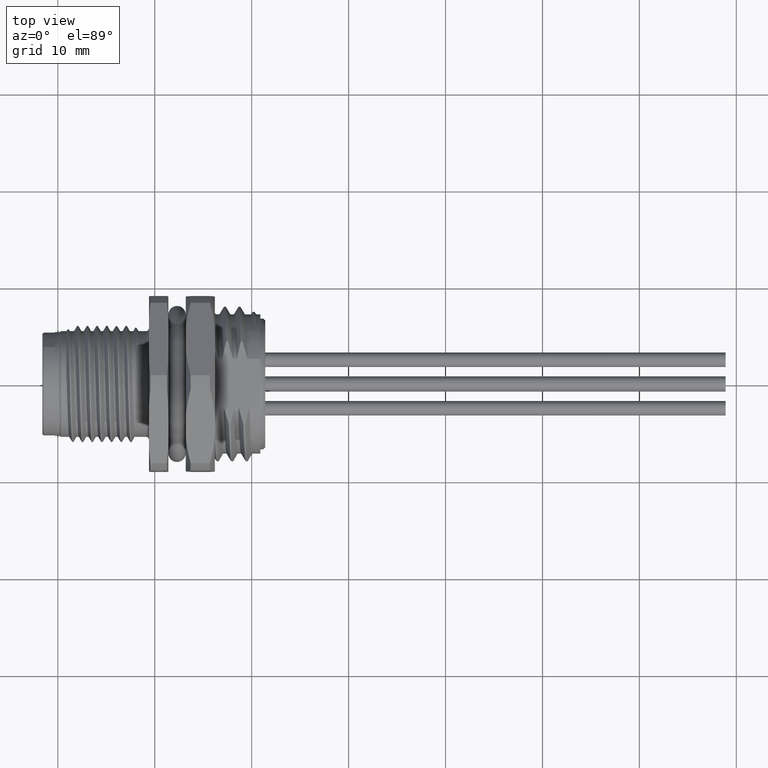
[diagram: clean part render]
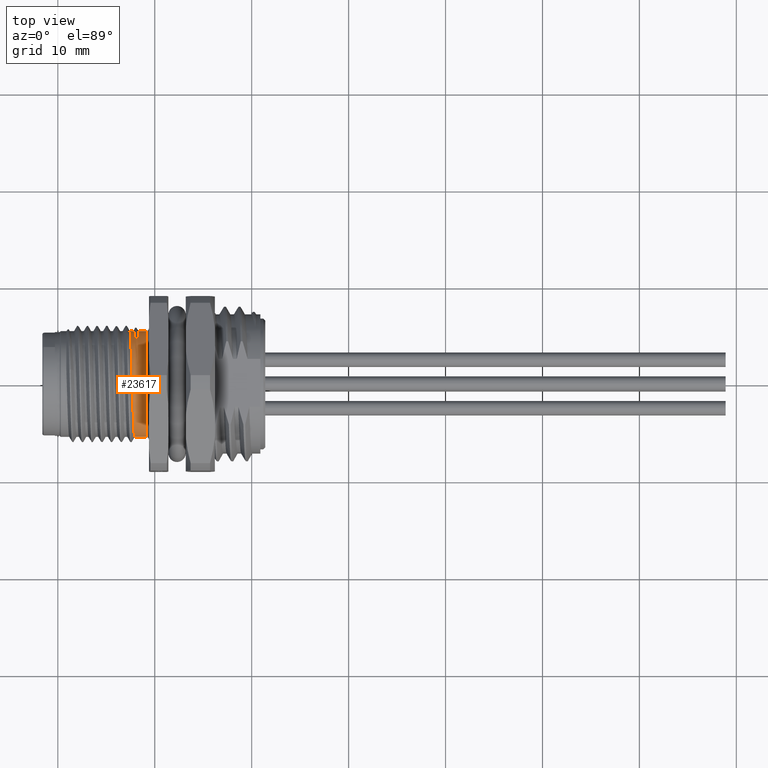
[diagram: same view with one face highlighted and labeled with its STEP entity id]
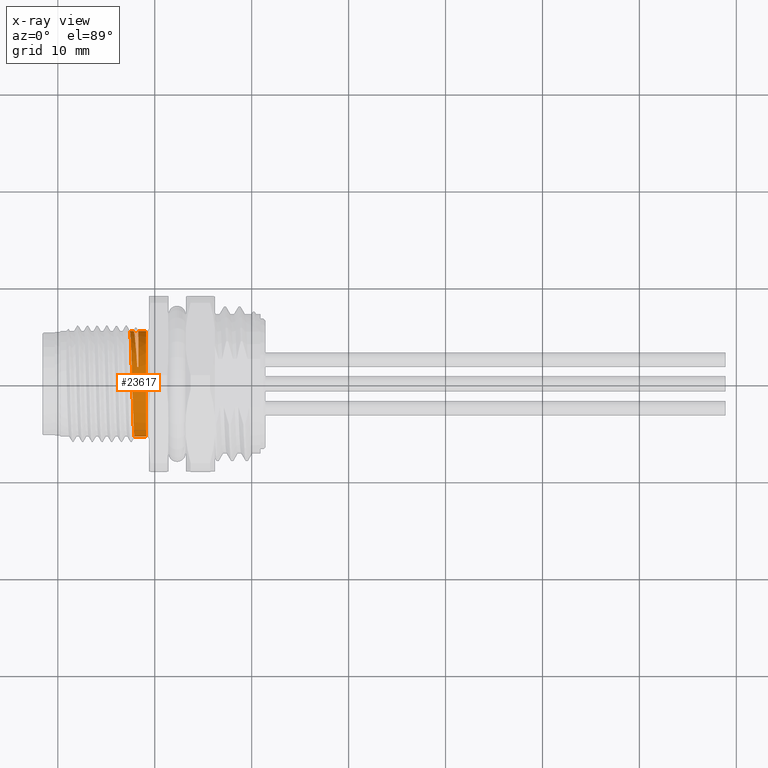
[diagram: x-ray of the same camera — body ghosted, the highlighted face saturated]
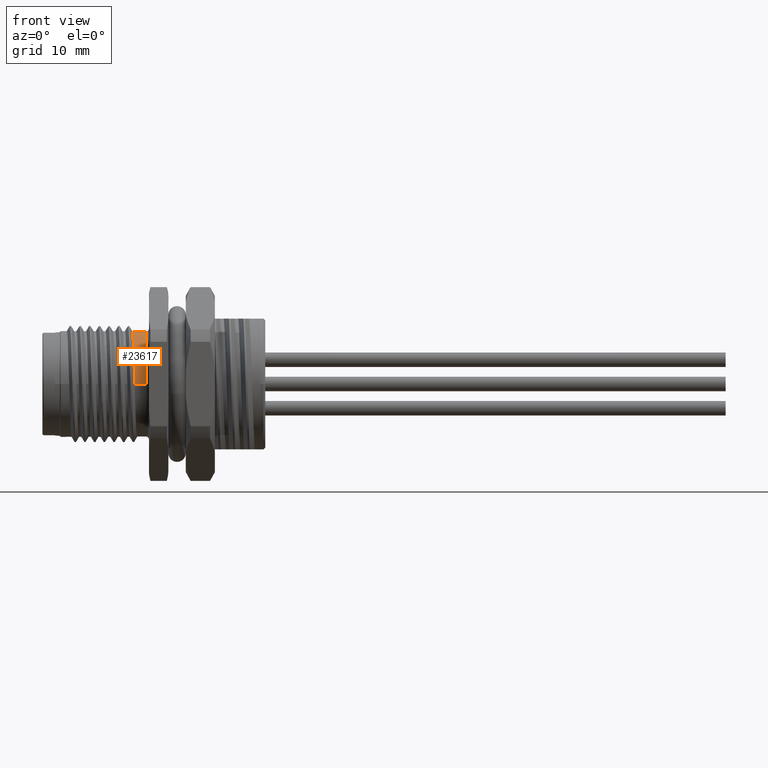
[diagram: same view with one face highlighted and labeled with its STEP entity id]
A machine part, top view. The second image highlights one B-rep face of the part: STEP entity #23617.
The next image is the same camera in x-ray: the body ghosted, the highlighted face saturated — about 0% of this face is hidden behind the body in this view.
A second angle (front view) of the same face is appended — the face is thin or edge-on in the first view.
In plain terms, the highlighted cylindrical surface (partial cylindrical patch) has radius 5.4585 mm, axis along (1, 0, 0).
Its self-contained STEP definition (entity closure, byte-faithful):
#7182=CARTESIAN_POINT('',(9.1E0,0.E0,0.E0));
#7183=DIRECTION('',(-1.E0,0.E0,0.E0));
#7184=DIRECTION('',(0.E0,-1.E0,0.E0));
#7185=AXIS2_PLACEMENT_3D('',#7182,#7183,#7184);
#7187=CARTESIAN_POINT('',(9.1E0,0.E0,0.E0));
#7188=DIRECTION('',(-1.E0,0.E0,0.E0));
#7189=DIRECTION('',(0.E0,-9.999984010933E-1,1.788242374370E-3));
#7190=AXIS2_PLACEMENT_3D('',#7187,#7188,#7189);
#7207=DIRECTION('',(-9.999999998442E-1,1.763795657482E-5,-6.393055044972E-7));
#7208=VECTOR('',#7207,1.174897422755E0);
#7209=CARTESIAN_POINT('',(9.1E0,-5.4585E0,0.E0));
#7210=LINE('',#7209,#7208);
#7211=CARTESIAN_POINT('',(7.925102577428E0,-5.458479277210E0,
-7.511183884526E-7));
#7212=CARTESIAN_POINT('',(7.914670303423E0,-5.458479277210E0,
3.565071054038E-1));
#7213=CARTESIAN_POINT('',(7.893956685434E0,-5.388311715190E0,1.070360497287E0));
#7214=CARTESIAN_POINT('',(7.862651445275E0,-5.076201195601E0,2.101779332017E0));
#7215=CARTESIAN_POINT('',(7.831248904882E0,-4.564848608542E0,3.055819770886E0));
#7216=CARTESIAN_POINT('',(7.800429030378E0,-3.891406341018E0,3.877094333022E0));
#7217=CARTESIAN_POINT('',(7.769050057715E0,-3.057157264757E0,4.565043234737E0));
#7218=CARTESIAN_POINT('',(7.737710143136E0,-2.104749873264E0,5.074590487869E0));
#7219=CARTESIAN_POINT('',(7.706405319902E0,-1.072485930141E0,5.388199195871E0));
#7220=CARTESIAN_POINT('',(7.675068575422E0,2.291444817495E-3,5.493714760883E0));
#7221=CARTESIAN_POINT('',(7.643875755686E0,1.072076118760E0,5.387940590145E0));
#7222=CARTESIAN_POINT('',(7.612645609766E0,2.101955257562E0,5.075595252357E0));
#7223=CARTESIAN_POINT('',(7.581388401601E0,3.052243083780E0,4.568122877727E0));
#7224=CARTESIAN_POINT('',(7.550044626317E0,3.886447983948E0,3.882108298892E0));
#7225=CARTESIAN_POINT('',(7.519189670583E0,4.561741560286E0,3.060575652616E0));
#7226=CARTESIAN_POINT('',(7.487745810698E0,5.074422318489E0,2.106377104821E0));
#7227=CARTESIAN_POINT('',(7.456434291174E0,5.388100347993E0,1.072373571449E0));
#7228=CARTESIAN_POINT('',(7.435482069281E0,5.458478658594E0,3.571896751154E-1));
#7229=CARTESIAN_POINT('',(7.425102719037E0,5.458478681240E0,9.862972685024E-7));
#7231=DIRECTION('',(9.999999983609E-1,5.721142389389E-5,-2.264672331386E-6));
#7232=VECTOR('',#7231,3.616441857593E-1);
#7233=CARTESIAN_POINT('',(7.425102719037E0,5.458478681240E0,9.862972685024E-7));
#7234=LINE('',#7233,#7232);
#7235=CARTESIAN_POINT('',(7.786746904203E0,5.458499371419E0,1.672916872069E-7));
#7236=CARTESIAN_POINT('',(7.805837287823E0,5.458499350643E0,3.276984725669E-1));
#7237=CARTESIAN_POINT('',(7.844118134292E0,5.399325302831E0,9.831008989299E-1));
#7238=CARTESIAN_POINT('',(7.901429448029E0,5.135845441378E0,1.934467406882E0));
#7239=CARTESIAN_POINT('',(7.958733278333E0,4.706244929145E0,2.823280963165E0));
#7240=CARTESIAN_POINT('',(8.016149994024E0,4.123694465612E0,3.621377804269E0));
#7241=CARTESIAN_POINT('',(8.073481917832E0,3.408487586571E0,4.301390603505E0));
#7242=CARTESIAN_POINT('',(8.130886200353E0,2.580983569047E0,4.843435637586E0));
#7243=CARTESIAN_POINT('',(8.169168254542E0,1.974381431640E0,5.099454522164E0));
#7244=CARTESIAN_POINT('',(8.188260984851E0,1.662123671436E0,5.199278171536E0));
#7246=DIRECTION('',(1.E0,-3.838354668913E-14,0.E0));
#7247=VECTOR('',#7246,7.867450737259E-1);
#7248=CARTESIAN_POINT('',(8.313254926274E0,5.4585E0,0.E0));
#7249=LINE('',#7248,#7247);
#7286=CARTESIAN_POINT('',(8.313254926274E0,0.E0,0.E0));
#7287=DIRECTION('',(1.E0,0.E0,0.E0));
#7288=DIRECTION('',(0.E0,1.E0,0.E0));
#7289=AXIS2_PLACEMENT_3D('',#7286,#7287,#7288);
#7305=DIRECTION('',(-9.999999760750E-1,-2.110721219322E-4,5.743330365094E-5));
#7306=VECTOR('',#7305,1.249939339530E-1);
#7307=CARTESIAN_POINT('',(8.313254915813E0,1.662150054171E0,5.199270992722E0));
#7308=LINE('',#7307,#7306);
#13740=CARTESIAN_POINT('',(9.1E0,-5.458491272368E0,9.761121000501E-3));
#13741=CARTESIAN_POINT('',(9.1E0,5.4585E0,0.E0));
#13742=VERTEX_POINT('',#13740);
#13743=VERTEX_POINT('',#13741);
#13744=CARTESIAN_POINT('',(9.1E0,-5.4585E0,0.E0));
#13745=VERTEX_POINT('',#13744);
#13746=CARTESIAN_POINT('',(7.925102577428E0,-5.458479277210E0,
-7.511183884526E-7));
#13747=VERTEX_POINT('',#13746);
#13748=VERTEX_POINT('',#7229);
#13749=CARTESIAN_POINT('',(7.786746904203E0,5.458499371419E0,
1.672916872069E-7));
#13750=VERTEX_POINT('',#13749);
#13751=VERTEX_POINT('',#7244);
#13752=CARTESIAN_POINT('',(8.313254915813E0,1.662150054171E0,5.199270992722E0));
#13753=VERTEX_POINT('',#13752);
#13754=CARTESIAN_POINT('',(8.313254926274E0,5.4585E0,0.E0));
#13755=VERTEX_POINT('',#13754);
#23594=CARTESIAN_POINT('',(1.24E-1,0.E0,0.E0));
#23595=DIRECTION('',(1.E0,0.E0,0.E0));
#23596=DIRECTION('',(0.E0,-1.E0,0.E0));
#23597=AXIS2_PLACEMENT_3D('',#23594,#23595,#23596);
#23598=CYLINDRICAL_SURFACE('',#23597,5.4585E0);
#23599=ORIENTED_EDGE('',*,*,#23583,.F.);
#23600=ORIENTED_EDGE('',*,*,#23581,.F.);
#23602=ORIENTED_EDGE('',*,*,#23601,.T.);
#23604=ORIENTED_EDGE('',*,*,#23603,.T.);
#23606=ORIENTED_EDGE('',*,*,#23605,.T.);
#23608=ORIENTED_EDGE('',*,*,#23607,.T.);
#23610=ORIENTED_EDGE('',*,*,#23609,.F.);
#23612=ORIENTED_EDGE('',*,*,#23611,.F.);
#23614=ORIENTED_EDGE('',*,*,#23613,.T.);
#23615=EDGE_LOOP('',(#23599,#23600,#23602,#23604,#23606,#23608,#23610,#23612,
#23614));
#23616=FACE_OUTER_BOUND('',#23615,.F.);
#23617=ADVANCED_FACE('',(#23616),#23598,.T.);
#7186=CIRCLE('',#7185,5.4585E0);
#7191=CIRCLE('',#7190,5.4585E0);
#7230=B_SPLINE_CURVE_WITH_KNOTS('',3,(#7211,#7212,#7213,#7214,#7215,#7216,#7217,
#7218,#7219,#7220,#7221,#7222,#7223,#7224,#7225,#7226,#7227,#7228,#7229),
.UNSPECIFIED.,.F.,.F.,(4,1,1,1,1,1,1,1,1,1,1,1,1,1,1,1,4),(0.E0,6.25E-2,1.25E-1,
1.875E-1,2.5E-1,3.125E-1,3.75E-1,4.375E-1,5.E-1,5.625E-1,6.25E-1,6.875E-1,
7.5E-1,8.125E-1,8.75E-1,9.375E-1,1.E0),.UNSPECIFIED.);
#7245=B_SPLINE_CURVE_WITH_KNOTS('',3,(#7235,#7236,#7237,#7238,#7239,#7240,#7241,
#7242,#7243,#7244),.UNSPECIFIED.,.F.,.F.,(4,1,1,1,1,1,1,4),(0.E0,
1.428571428571E-1,2.857142857143E-1,4.285714285714E-1,5.714285714286E-1,
7.142857142857E-1,8.571428571429E-1,1.E0),.UNSPECIFIED.);
#7290=CIRCLE('',#7289,5.4585E0);
#23581=EDGE_CURVE('',#13745,#13742,#7186,.T.);
#23583=EDGE_CURVE('',#13742,#13743,#7191,.T.);
#23601=EDGE_CURVE('',#13745,#13747,#7210,.T.);
#23603=EDGE_CURVE('',#13747,#13748,#7230,.T.);
#23605=EDGE_CURVE('',#13748,#13750,#7234,.T.);
#23607=EDGE_CURVE('',#13750,#13751,#7245,.T.);
#23609=EDGE_CURVE('',#13753,#13751,#7308,.T.);
#23611=EDGE_CURVE('',#13755,#13753,#7290,.T.);
#23613=EDGE_CURVE('',#13755,#13743,#7249,.T.);